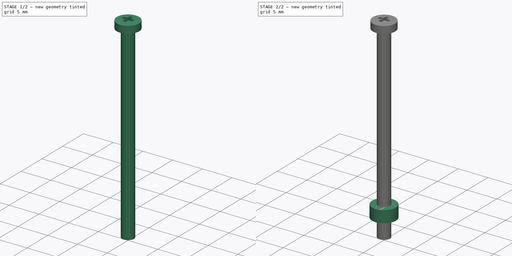
[diagram: build sequence overview — one tinted view per stage of 2, left to right]
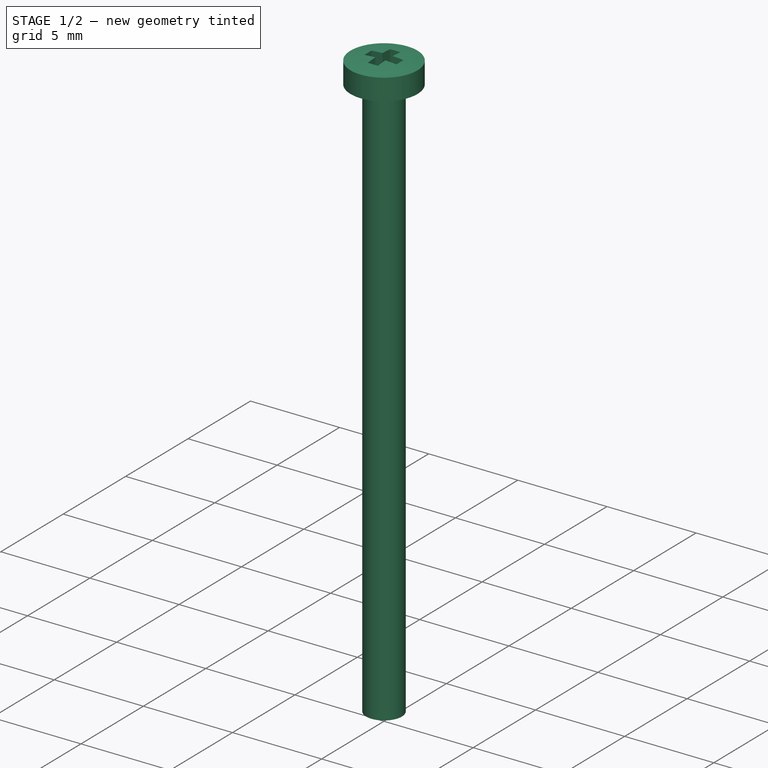
[diagram: stage 1 of 2 — iso view after this stage's code; geometry added in this stage tinted green]
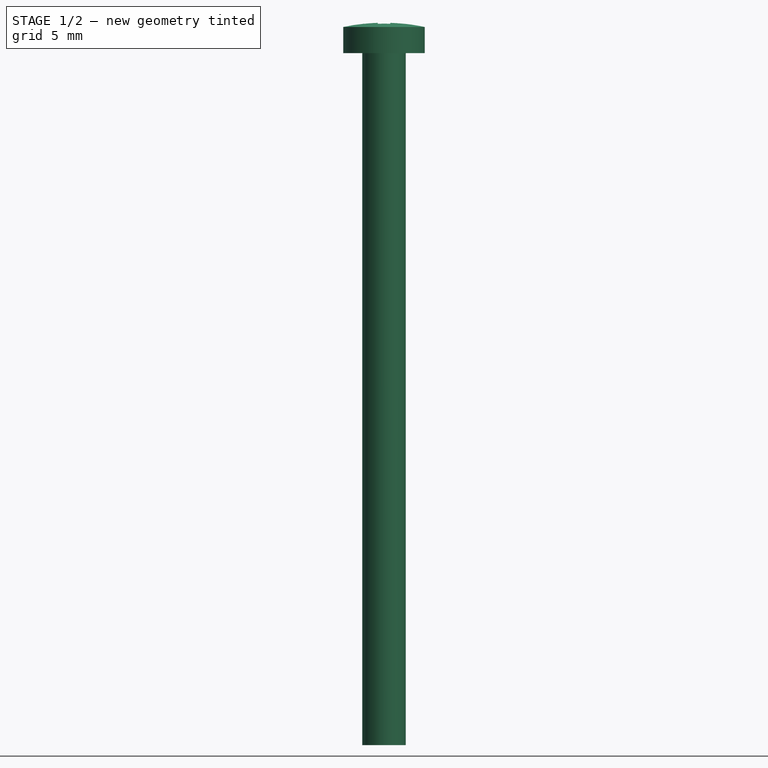
[diagram: stage 1 of 2 — front view after this stage's code; geometry added in this stage tinted green]
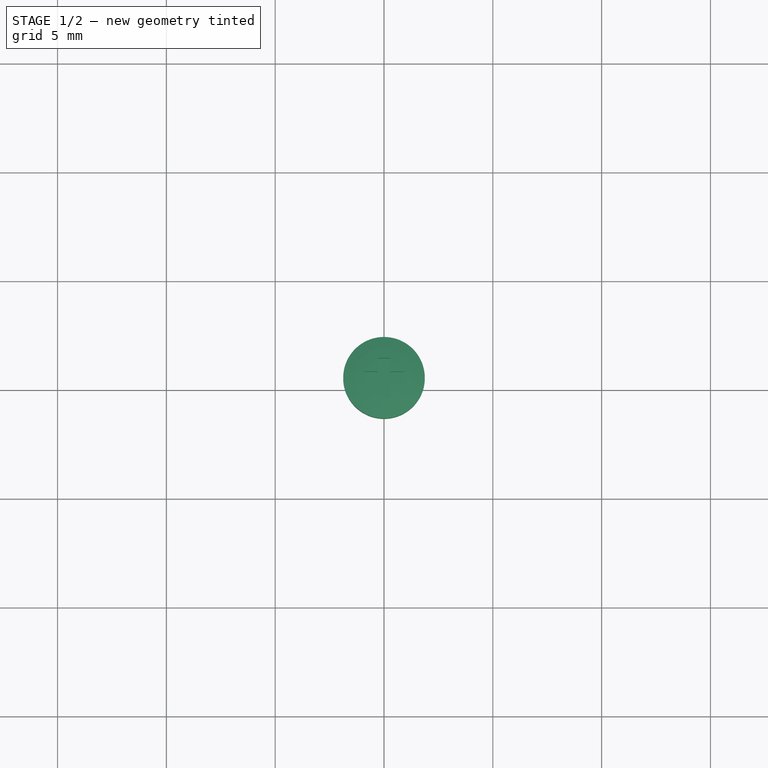
[diagram: stage 1 of 2 — top view after this stage's code; geometry added in this stage tinted green]
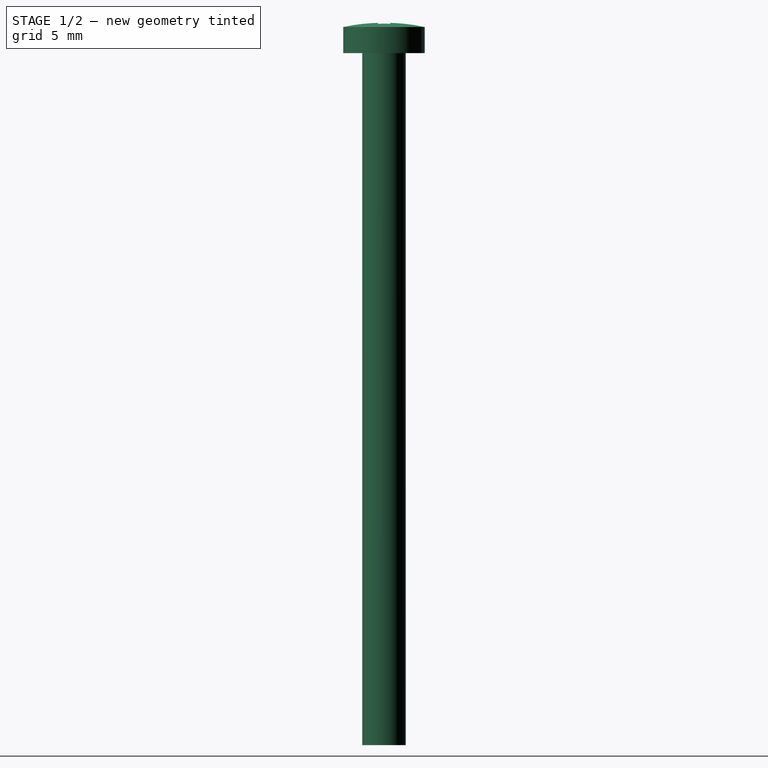
[diagram: stage 1 of 2 — right view after this stage's code; geometry added in this stage tinted green]
FCSTD DOCUMENT  (FreeCAD 0.14R3702 (Git))
Label: SM-S4303R-bottom-screws
License: CC-BY 3.0
LicenseURL: http://creativecommons.org/licenses/by/3.0/
objects: Sketcher::SketchObject×3, PartDesign::Pad×2, PartDesign::Revolution×1, Part::Feature×1, Part::Cut×1
note: 11 computed .brp shape members not serialized (recipe doc carries the construction recipe); baked Part::Feature solids carry a one-line shape summary decoded from their .brp

FEATURE [Sketcher::SketchObject] Sketch  label="screw-body-sketch"
  Placement = pos=(0,0,0) rot=(-1,0,0;4.71239rad)
  sketch-geometry (6):
    g0: LineSegment StartX=0 StartY=33.2 StartZ=0 EndX=0 EndY=0 EndZ=0
    g1: LineSegment StartX=0 StartY=0 StartZ=0 EndX=1 EndY=0 EndZ=0
    g2: LineSegment StartX=1 StartY=0 StartZ=0 EndX=1 EndY=31.8 EndZ=0
    g3: LineSegment StartX=1 StartY=31.8 StartZ=0 EndX=1.875 EndY=31.8 EndZ=0
    g4: LineSegment StartX=1.875 StartY=31.8 StartZ=0 EndX=1.875 EndY=33 EndZ=0
    g5: ArcOfCircle CenterX=0 CenterY=24.3109 CenterZ=0 NormalX=0 NormalY=0 NormalZ=1 Radius=8.88906 StartAngle=1.35827 EndAngle=1.5708
  constraints (18):
    c: Vertical(g0)
    c: Coincident(g0,g1)
    c: Coincident(g1,g2)
    c: Vertical(g2)
    c: Coincident(g2,g3)
    c: Horizontal(g3)
    c: Coincident(g3,g4)
    c: Vertical(g4)
    c: Horizontal(g1)
    c: Coincident(g0,g-1)
    c: DistanceY(g0) = -33.2
    c: DistanceY(g4) = 1.2
    c: DistanceX(g1) = 1
    c: DistanceX(g-1,g3) = 1.875
    c: DistanceY(g4,g1) = -33
    c: PointOnObject(g5,g0)
    c: Coincident(g5,g0)
    c: Coincident(g5,g4)
FEATURE [PartDesign::Revolution] Revolution  label="screw-body"
  Angle = 360
  Axis = (0,0,1)
  Base = (0,0,0)
  Placement = pos=(0,0,0) rot=(-1,0,0;4.71239rad)
  ReferenceAxis = -> Sketch [V_Axis]
  Reversed = true
  Sketch = -> Sketch
FEATURE [Part::Feature] Pad001001  label="cross-003"
  Placement = pos=(0,0,32.3) rot=(0,0,1;0rad)
  shape: bbox 4 x 4 x 5 mm, 16 faces (baked)
FEATURE [Part::Cut] Cut  label="bottom-screw-final"
  Base = -> Revolution
  Tool = -> Pad001001
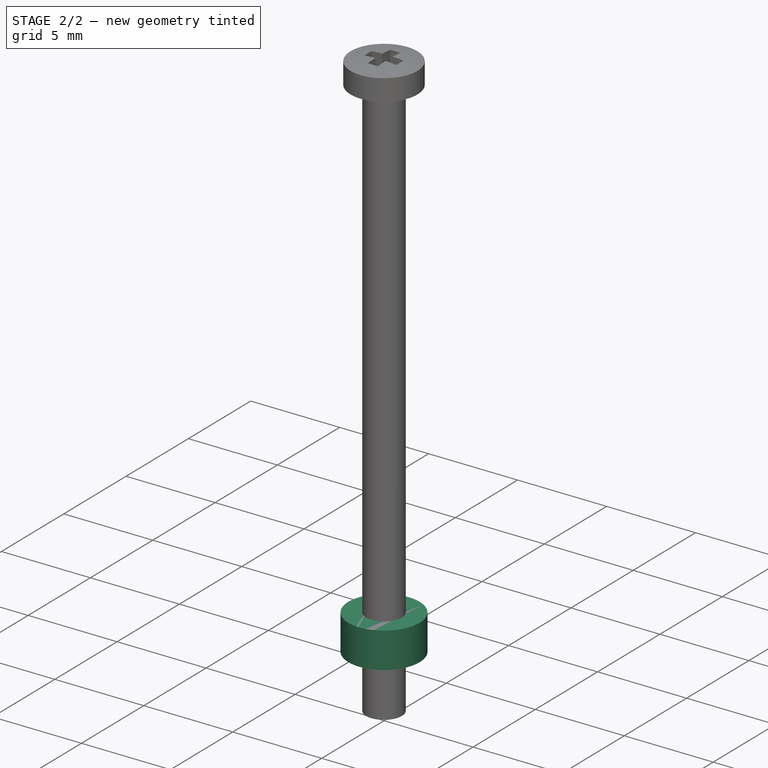
[diagram: stage 2 of 2 — iso view after this stage's code; geometry added in this stage tinted green]
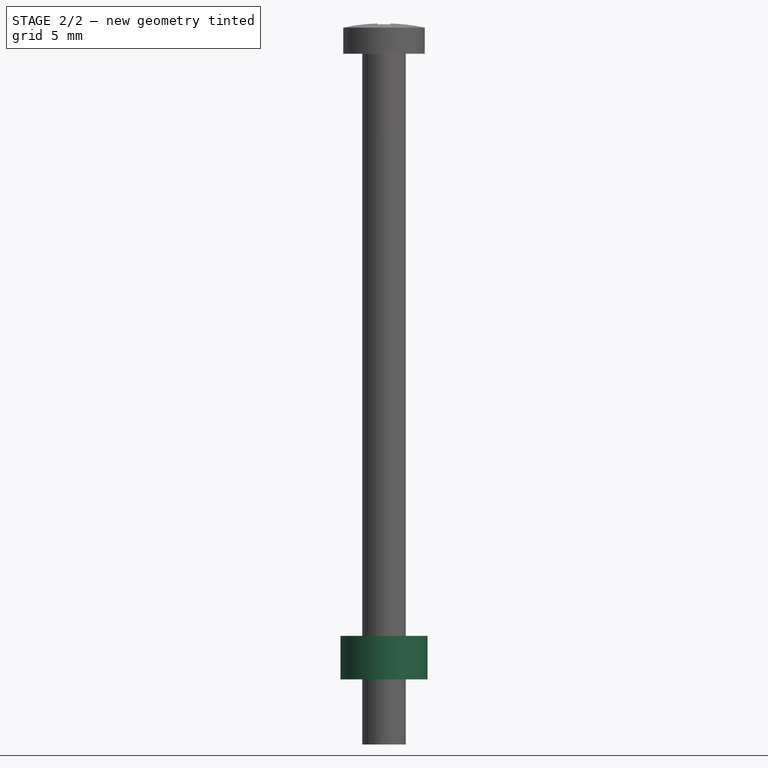
[diagram: stage 2 of 2 — front view after this stage's code; geometry added in this stage tinted green]
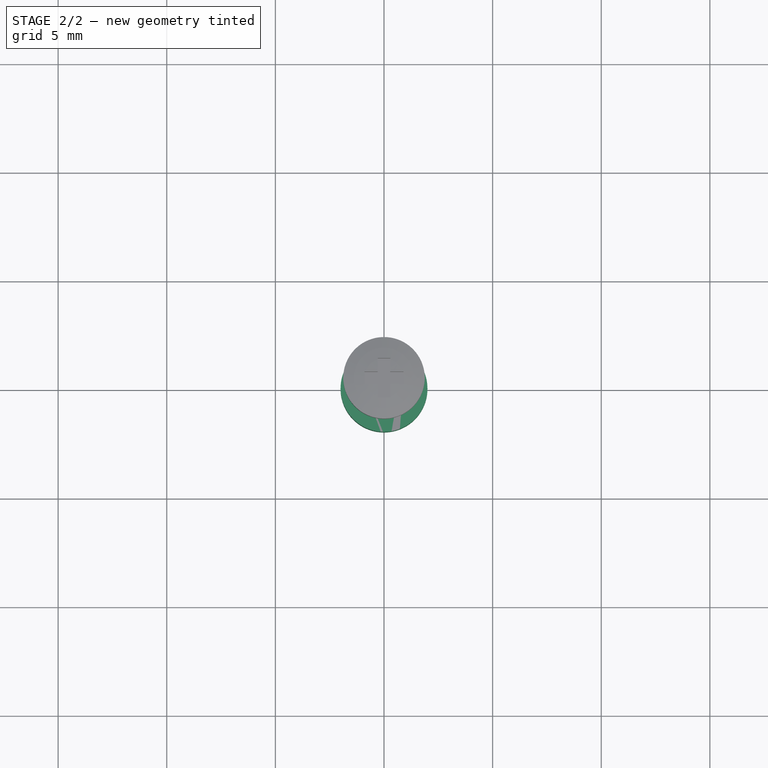
[diagram: stage 2 of 2 — top view after this stage's code; geometry added in this stage tinted green]
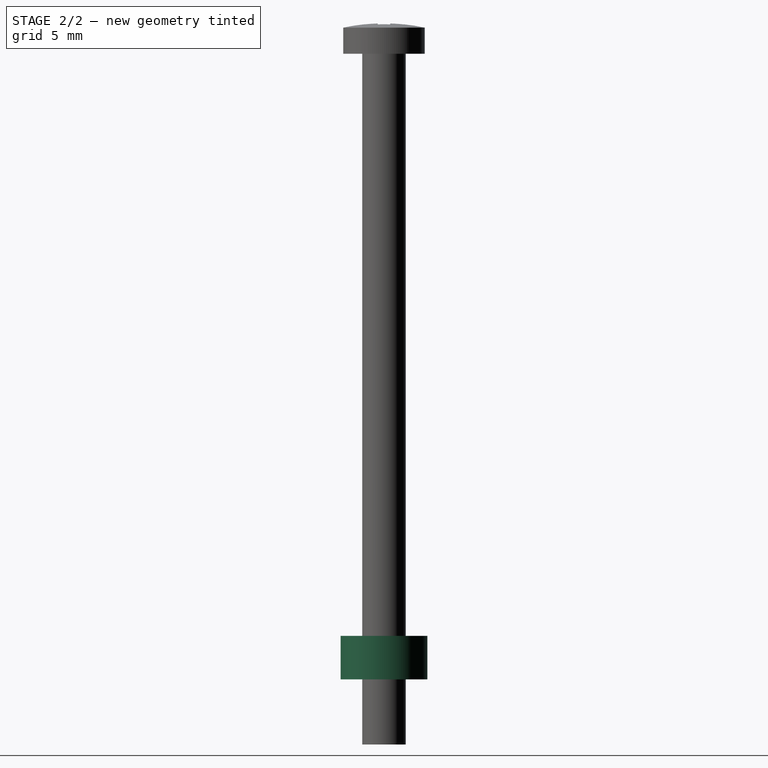
[diagram: stage 2 of 2 — right view after this stage's code; geometry added in this stage tinted green]
FEATURE [Sketcher::SketchObject] Sketch001  label="cross-sketch"
  sketch-geometry (13):
    g0: Circle [constr] CenterX=0 CenterY=0 CenterZ=0 NormalX=0 NormalY=0 NormalZ=1 Radius=1.875
    g1: LineSegment StartX=-0.285 StartY=0.9 StartZ=0 EndX=0.285 EndY=0.9 EndZ=0
    g2: LineSegment StartX=0.285 StartY=0.9 StartZ=0 EndX=0.285 EndY=0.285 EndZ=0
    g3: LineSegment StartX=0.285 StartY=-0.9 StartZ=0 EndX=-0.285 EndY=-0.9 EndZ=0
    g4: LineSegment StartX=-0.285 StartY=-0.9 StartZ=0 EndX=-0.285 EndY=-0.285 EndZ=0
    g5: LineSegment StartX=-0.9 StartY=0.285 StartZ=0 EndX=-0.285 EndY=0.285 EndZ=0
    g6: LineSegment StartX=0.9 StartY=0.285 StartZ=0 EndX=0.9 EndY=-0.285 EndZ=0
    g7: LineSegment StartX=0.9 StartY=-0.285 StartZ=0 EndX=0.285 EndY=-0.285 EndZ=0
    g8: LineSegment StartX=-0.9 StartY=-0.285 StartZ=0 EndX=-0.9 EndY=0.285 EndZ=0
    g9: LineSegment StartX=0.285 StartY=0.285 StartZ=0 EndX=0.9 EndY=0.285 EndZ=0
    g10: LineSegment StartX=-0.285 StartY=0.285 StartZ=0 EndX=-0.285 EndY=0.9 EndZ=0
    g11: LineSegment StartX=-0.285 StartY=-0.285 StartZ=0 EndX=-0.9 EndY=-0.285 EndZ=0
    g12: LineSegment StartX=0.285 StartY=-0.285 StartZ=0 EndX=0.285 EndY=-0.9 EndZ=0
  constraints (32):
    c: Coincident(g0,g-1)
    c: Radius(g0) = 1.875
    c: Coincident(g1,g2)
    c: Coincident(g12,g3)
    c: Coincident(g3,g4)
    c: Coincident(g10,g1)
    c: Horizontal(g1)
    c: Horizontal(g3)
    c: Vertical(g2)
    c: Vertical(g4)
    c: Coincident(g9,g6)
    c: Coincident(g6,g7)
    c: Coincident(g11,g8)
    c: Coincident(g8,g5)
    c: Horizontal(g5)
    c: Horizontal(g7)
    c: Vertical(g6)
    c: Vertical(g8)
    c: Symmetric(g1,g12,g-1)
    c: Symmetric(g5,g6,g-1)
    c: Tangent(g5,g9)
    c: Coincident(g10,g5)
    c: Tangent(g4,g10)
    c: Coincident(g11,g4)
    c: Tangent(g7,g11)
    c: Coincident(g2,g9)
    c: Coincident(g12,g7)
    c: Tangent(g2,g12)
    c: DistanceX(g5,g6) = 1.8
    c: Equal(g10,g5)
    c: Equal(g8,g1)
    c: DistanceX(g1) = 0.57
FEATURE [PartDesign::Pad] Pad  label="cross-1"
  Length = 3
  Length2 = 100
  Sketch = -> Sketch001
  Type = 0
FEATURE [Sketcher::SketchObject] Sketch002
  Placement = pos=(0,0,3) rot=(0,0,1;0rad)
  Support = -> Pad [Face14]
  sketch-geometry (1):
    g0: Circle CenterX=0 CenterY=0 CenterZ=0 NormalX=0 NormalY=0 NormalZ=1 Radius=2
  constraints (2):
    c: Coincident(g0,g-1)
    c: Radius(g0) = 2
FEATURE [PartDesign::Pad] Pad001  label="cross-2"
  Length = 2
  Length2 = 100
  Sketch = -> Sketch002
  Type = 0
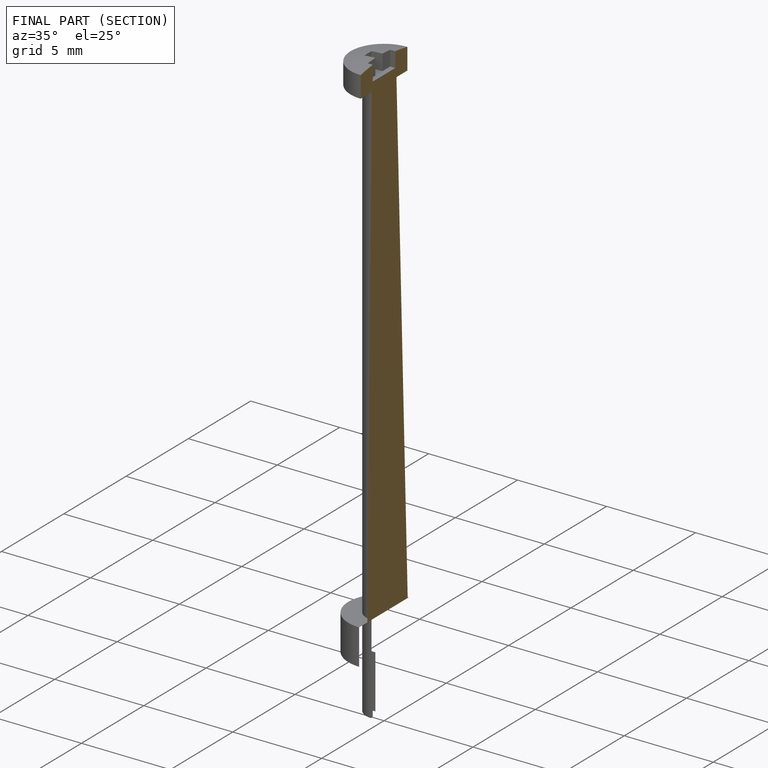
[diagram: finished part — half-section view (interior)]
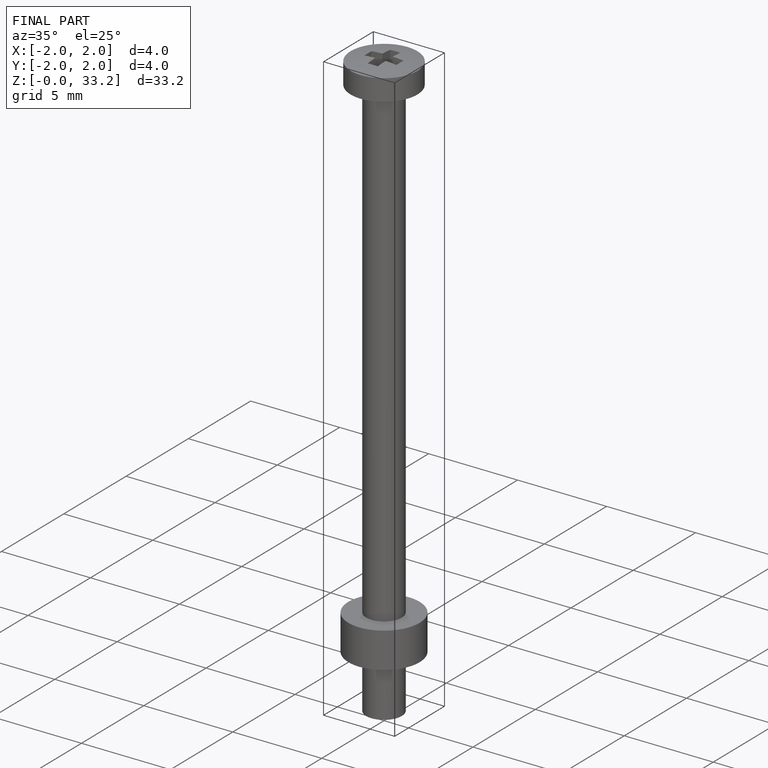
[diagram: finished part — iso view with bounding-box wireframe]
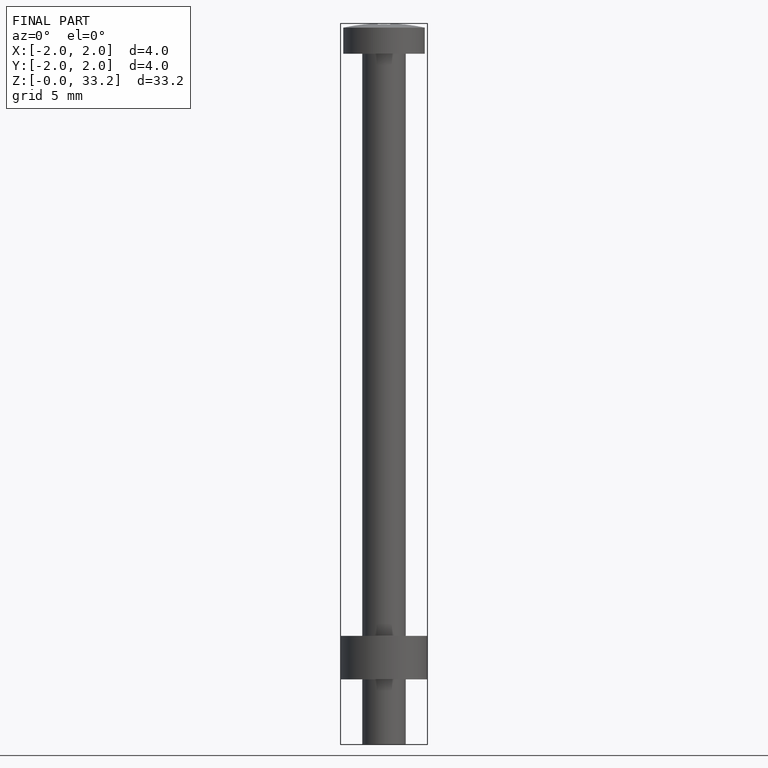
[diagram: finished part — front view with bounding-box wireframe]
